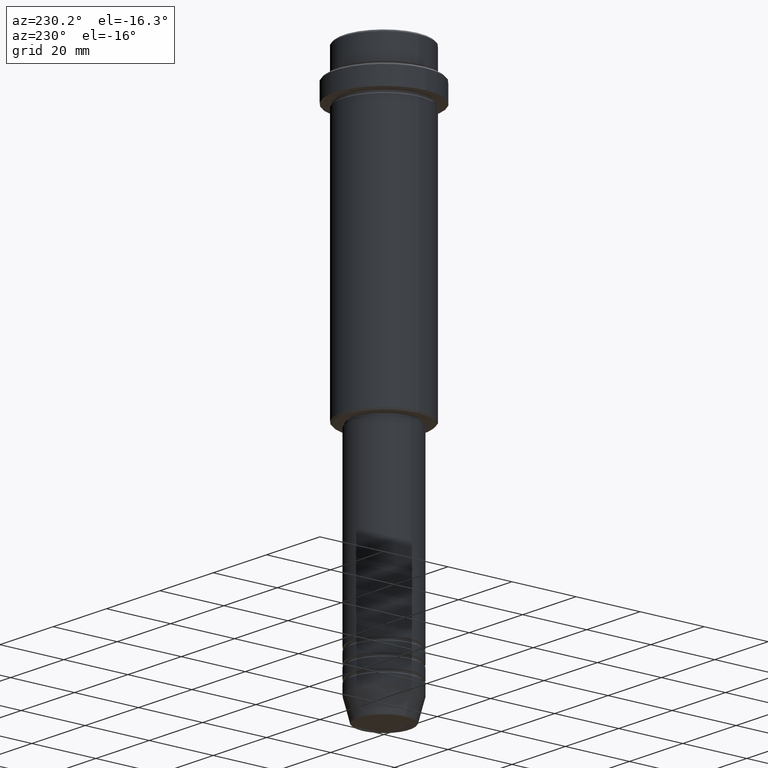
[diagram: clean part render]
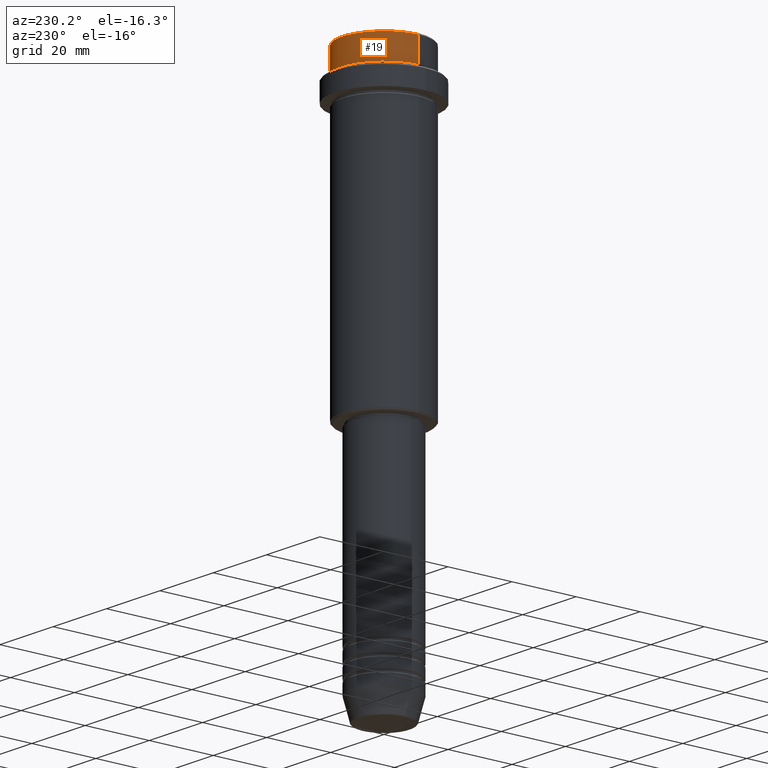
[diagram: same view with one face highlighted and labeled with its STEP entity id]
A machine part, auxiliary view. The second image highlights one B-rep face of the part: STEP entity #19.
In plain terms, the highlighted cylindrical surface (partial cylindrical patch) has radius 13 mm, axis along (-0, -0, 1).
Its self-contained STEP definition (entity closure, byte-faithful):
#19 = ADVANCED_FACE ( 'NONE', ( #410 ), #57, .T. ) ;
#24 = EDGE_CURVE ( 'NONE', #820, #928, #295, .T. ) ;
#57 = CYLINDRICAL_SURFACE ( 'NONE', #1391, 12.99999999999999822 ) ;
#64 = DIRECTION ( 'NONE',  ( -0.000000000000000000, -0.000000000000000000, 1.000000000000000000 ) ) ;
#88 = DIRECTION ( 'NONE',  ( 1.000000000000000000, 0.000000000000000000, 0.000000000000000000 ) ) ;
#89 = EDGE_CURVE ( 'NONE', #820, #1348, #427, .T. ) ;
#131 = EDGE_CURVE ( 'NONE', #342, #928, #169, .T. ) ;
#169 = CIRCLE ( 'NONE', #737, 12.99999999999999822 ) ;
#279 = CARTESIAN_POINT ( 'NONE',  ( 0.000000000000000000, 0.000000000000000000, 0.000000000000000000 ) ) ;
#295 = LINE ( 'NONE', #620, #805 ) ;
#342 = VERTEX_POINT ( 'NONE', #1257 ) ;
#350 = EDGE_CURVE ( 'NONE', #1348, #342, #1232, .T. ) ;
#390 = ORIENTED_EDGE ( 'NONE', *, *, #89, .T. ) ;
#396 = DIRECTION ( 'NONE',  ( 1.000000000000000000, 0.000000000000000000, 0.000000000000000000 ) ) ;
#410 = FACE_OUTER_BOUND ( 'NONE', #797, .T. ) ;
#427 = CIRCLE ( 'NONE', #1338, 12.99999999999999822 ) ;
#432 = CARTESIAN_POINT ( 'NONE',  ( 12.99999999999999822, 0.000000000000000000, -0.4999999999999900080 ) ) ;
#517 = VECTOR ( 'NONE', #1009, 1000.000000000000000 ) ;
#620 = CARTESIAN_POINT ( 'NONE',  ( 12.99999999999999822, 0.000000000000000000, 0.000000000000000000 ) ) ;
#687 = CARTESIAN_POINT ( 'NONE',  ( 12.99999999999999822, 0.000000000000000000, -7.999999999999998224 ) ) ;
#699 = CARTESIAN_POINT ( 'NONE',  ( 0.000000000000000000, 0.000000000000000000, -0.4999999999999900080 ) ) ;
#737 = AXIS2_PLACEMENT_3D ( 'NONE', #699, #1142, #944 ) ;
#791 = ORIENTED_EDGE ( 'NONE', *, *, #24, .F. ) ;
#797 = EDGE_LOOP ( 'NONE', ( #390, #1135, #1258, #791 ) ) ;
#805 = VECTOR ( 'NONE', #1387, 1000.000000000000000 ) ;
#820 = VERTEX_POINT ( 'NONE', #687 ) ;
#921 = CARTESIAN_POINT ( 'NONE',  ( -12.99999999999999822, 1.592040838891558898E-15, 0.000000000000000000 ) ) ;
#928 = VERTEX_POINT ( 'NONE', #432 ) ;
#944 = DIRECTION ( 'NONE',  ( 1.000000000000000000, 0.000000000000000000, 0.000000000000000000 ) ) ;
#1009 = DIRECTION ( 'NONE',  ( -0.000000000000000000, -0.000000000000000000, 1.000000000000000000 ) ) ;
#1061 = CARTESIAN_POINT ( 'NONE',  ( 0.000000000000000000, 0.000000000000000000, -7.999999999999998224 ) ) ;
#1135 = ORIENTED_EDGE ( 'NONE', *, *, #350, .T. ) ;
#1142 = DIRECTION ( 'NONE',  ( 0.000000000000000000, 0.000000000000000000, -1.000000000000000000 ) ) ;
#1170 = CARTESIAN_POINT ( 'NONE',  ( -12.99999999999999822, 1.592040838891558898E-15, -7.999999999999998224 ) ) ;
#1232 = LINE ( 'NONE', #921, #517 ) ;
#1257 = CARTESIAN_POINT ( 'NONE',  ( -12.99999999999999822, 1.592040838891558898E-15, -0.4999999999999900080 ) ) ;
#1258 = ORIENTED_EDGE ( 'NONE', *, *, #131, .T. ) ;
#1279 = DIRECTION ( 'NONE',  ( -0.000000000000000000, -0.000000000000000000, 1.000000000000000000 ) ) ;
#1338 = AXIS2_PLACEMENT_3D ( 'NONE', #1061, #64, #88 ) ;
#1348 = VERTEX_POINT ( 'NONE', #1170 ) ;
#1387 = DIRECTION ( 'NONE',  ( -0.000000000000000000, -0.000000000000000000, 1.000000000000000000 ) ) ;
#1391 = AXIS2_PLACEMENT_3D ( 'NONE', #279, #1279, #396 ) ;